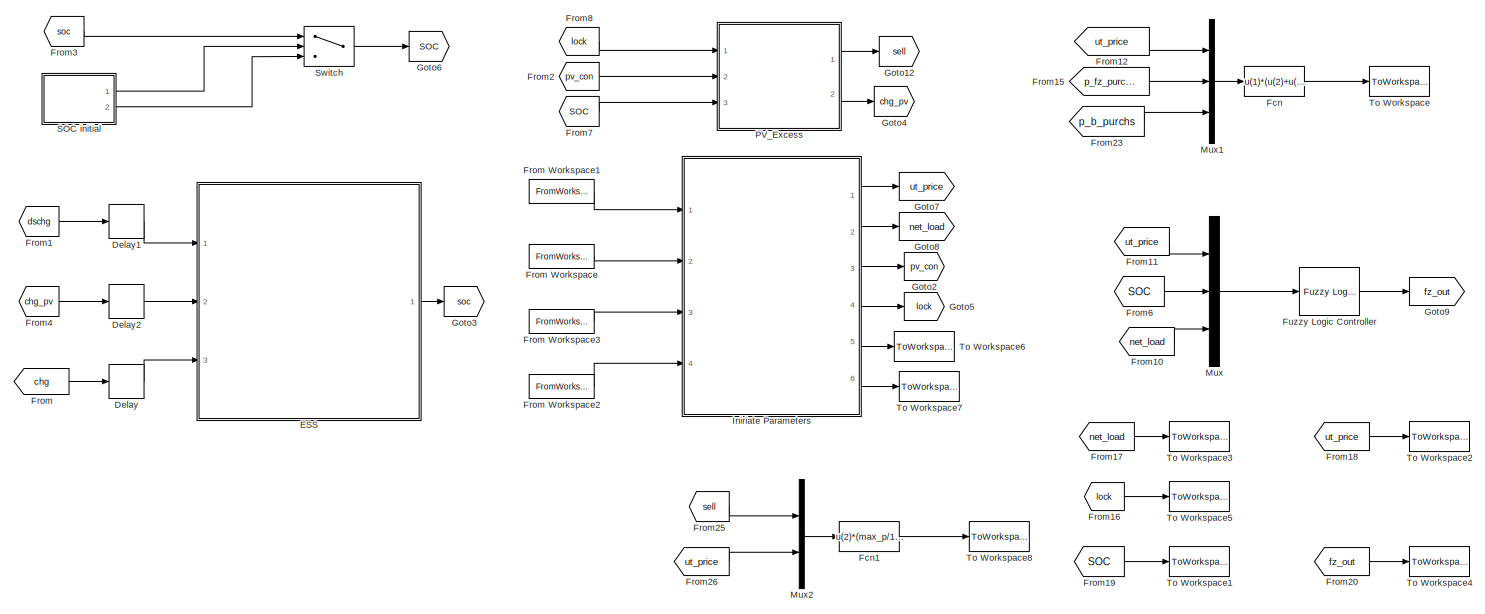
[diagram: root canvas - part 1/2, most of the canvas]
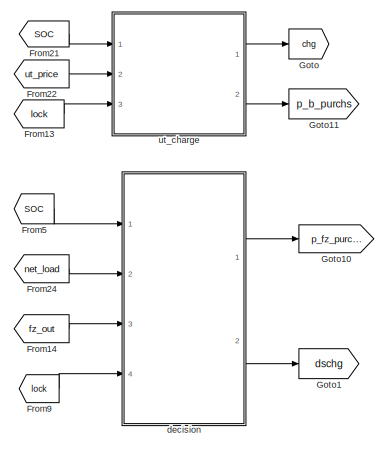
[diagram: root canvas - part 2/2, middle right region]
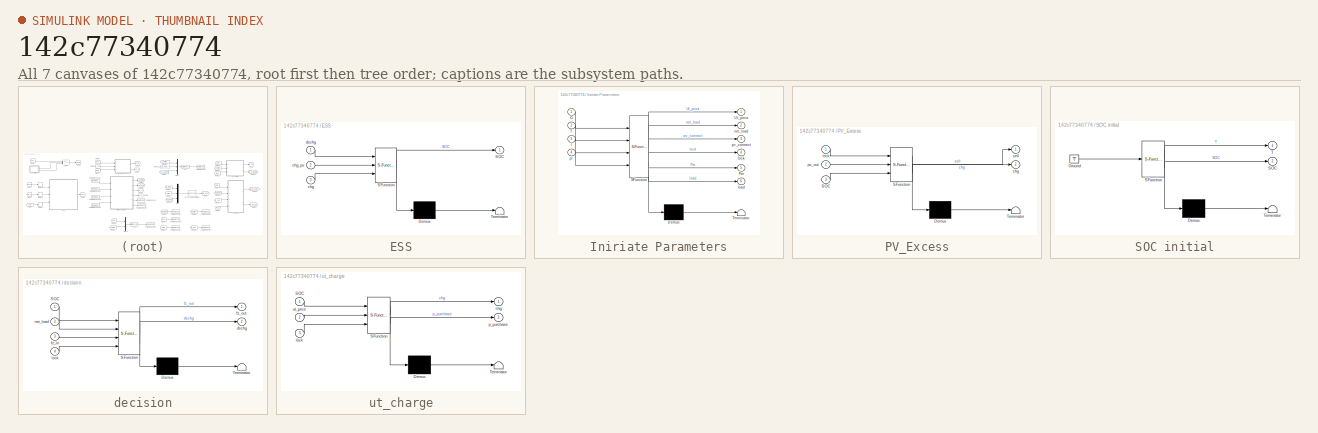
[diagram: thumbnail index - all 7 canvases of the model, root first then tree order]
MODEL slx_142c77340774
KIND model
CONFIG AbsTol = auto
CONFIG EnableMultiTasking = off
CONFIG FixedStep = 0.01
CONFIG InitFcn = myparameterswithpv;
CONFIG MaxStep = auto
CONFIG MinStep = auto
CONFIG PreLoadFcn = myparameterswithpv;
CONFIG RelTol = 1e-3
CONFIG SampleTimeConstraint = Unconstrained
CONFIG Solver = FixedStepAuto
CONFIG SolverName = FixedStepAuto
CONFIG StartTime = 0.0
CONFIG StopFcn = %datawriter;
CONFIG StopTime = 1.66
BLOCK [Delay] Delay
  DelayLength = 1
  InitialCondition = 0
  InputPortMap = u0
  Ports = [1, 1]
BLOCK [Delay] Delay1
  DelayLength = 1
  InitialCondition = 0
  InputPortMap = u0
  Ports = [1, 1]
BLOCK [Delay] Delay2
  DelayLength = 1
  InitialCondition = 0
  InputPortMap = u0
  Ports = [1, 1]
BLOCK [SubSystem] ESS
  ErrorFcn = Stateflow.Translate.translate
  PermitHierarchicalResolution = ExplicitOnly
  Ports = [3, 1]
  RequestExecContextInheritance = off
  SFBlockType = MATLAB Function
  TreatAsAtomicUnit = on
BLOCK [Demux] ESS/ Demux 
  Outputs = 1
  Ports = [1, 1]
BLOCK [S-Function] ESS/ SFunction 
  EnableBusSupport = on
  FunctionName = sf_sfun
  PortCounts = [3 2]
  Ports = [3, 2]
  SFcnIsStateOwnerBlock = off
  SFunctionDeploymentMode = off
  Tag = Stateflow S-Function ModelWithPV 2
BLOCK [Terminator] ESS/ Terminator 
BLOCK [Outport] ESS/SOC
  IconDisplay = Port number
BLOCK [Inport] ESS/chg
  IconDisplay = Port number
  Port = 3
BLOCK [Inport] ESS/chg_pv
  IconDisplay = Port number
  Port = 2
BLOCK [Inport] ESS/dschg
  IconDisplay = Port number
BLOCK [Fcn] Fcn
  Expr = u(1)*(u(2)+u(3))*max_p/1000000
BLOCK [Fcn] Fcn1
  Expr = u(2)*(max_p/1000)*(u(1)/1000)
BLOCK [From] From
  GotoTag = chg
BLOCK [FromWorkspace] From Workspace
  SampleTime = 0
  VariableName = T_data
  ZeroCross = on
BLOCK [FromWorkspace] From Workspace1
  SampleTime = 0
  VariableName = G_data
  ZeroCross = on
BLOCK [FromWorkspace] From Workspace2
  SampleTime = 0
  VariableName = ut_price
  ZeroCross = on
BLOCK [FromWorkspace] From Workspace3
  SampleTime = 0
  VariableName = load_data
  ZeroCross = on
BLOCK [From] From1
  GotoTag = dschg
BLOCK [From] From10
  GotoTag = net_load
BLOCK [From] From11
  GotoTag = ut_price
BLOCK [From] From12
  GotoTag = ut_price
BLOCK [From] From13
  GotoTag = lock
BLOCK [From] From14
  GotoTag = fz_out
BLOCK [From] From15
  GotoTag = p_fz_purchs
BLOCK [From] From16
  GotoTag = lock
BLOCK [From] From17
  GotoTag = net_load
BLOCK [From] From18
  GotoTag = ut_price
BLOCK [From] From19
  GotoTag = SOC
BLOCK [From] From2
  GotoTag = pv_con
BLOCK [From] From20
  GotoTag = fz_out
BLOCK [From] From21
  GotoTag = SOC
BLOCK [From] From22
  GotoTag = ut_price
BLOCK [From] From23
  GotoTag = p_b_purchs
BLOCK [From] From24
  GotoTag = net_load
BLOCK [From] From25
  GotoTag = sell
BLOCK [From] From26
  GotoTag = ut_price
BLOCK [From] From3
  GotoTag = soc
BLOCK [From] From4
  GotoTag = chg_pv
BLOCK [From] From5
  GotoTag = SOC
BLOCK [From] From6
  GotoTag = SOC
BLOCK [From] From7
  GotoTag = SOC
BLOCK [From] From8
  GotoTag = lock
BLOCK [From] From9
  GotoTag = lock
BLOCK [Reference] Fuzzy Logic Controller  REF=fuzblock/Fuzzy Logic   (lib defined in mdl_858b3b3e7478)
Controller
  Ports = [1, 1]
  SourceBlock = fuzblock/Fuzzy Logic \nController
  SourceProductBaseCode = FL
  SourceProductName = Fuzzy Logic Toolbox
  SourceType = Fuzzy Inference System
BLOCK [Goto] Goto
  GotoTag = chg
BLOCK [Goto] Goto1
  GotoTag = dschg
BLOCK [Goto] Goto10
  GotoTag = p_fz_purchs
BLOCK [Goto] Goto11
  GotoTag = p_b_purchs
BLOCK [Goto] Goto12
  GotoTag = sell
BLOCK [Goto] Goto2
  GotoTag = pv_con
BLOCK [Goto] Goto3
  GotoTag = soc
BLOCK [Goto] Goto4
  GotoTag = chg_pv
BLOCK [Goto] Goto5
  GotoTag = lock
BLOCK [Goto] Goto6
  GotoTag = SOC
BLOCK [Goto] Goto7
  GotoTag = ut_price
BLOCK [Goto] Goto8
  GotoTag = net_load
BLOCK [Goto] Goto9
  GotoTag = fz_out
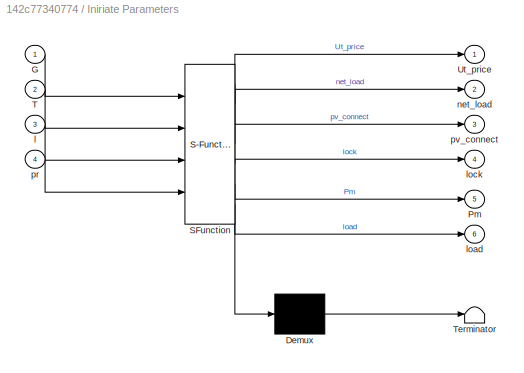
BLOCK [SubSystem] Iniriate Parameters
  ErrorFcn = Stateflow.Translate.translate
  PermitHierarchicalResolution = ExplicitOnly
  Ports = [4, 6]
  RequestExecContextInheritance = off
  SFBlockType = MATLAB Function
  TreatAsAtomicUnit = on
BLOCK [Demux] Iniriate Parameters/ Demux 
  Outputs = 1
  Ports = [1, 1]
BLOCK [S-Function] Iniriate Parameters/ SFunction 
  EnableBusSupport = on
  FunctionName = sf_sfun
  PortCounts = [4 7]
  Ports = [4, 7]
  SFcnIsStateOwnerBlock = off
  SFunctionDeploymentMode = off
  Tag = Stateflow S-Function ModelWithPV 3
BLOCK [Terminator] Iniriate Parameters/ Terminator 
BLOCK [Inport] Iniriate Parameters/G
  IconDisplay = Port number
BLOCK [Outport] Iniriate Parameters/Pm
  IconDisplay = Port number
  Port = 5
BLOCK [Inport] Iniriate Parameters/T
  IconDisplay = Port number
  Port = 2
BLOCK [Outport] Iniriate Parameters/Ut_price
  IconDisplay = Port number
BLOCK [Inport] Iniriate Parameters/l
  IconDisplay = Port number
  Port = 3
BLOCK [Outport] Iniriate Parameters/load
  IconDisplay = Port number
  Port = 6
BLOCK [Outport] Iniriate Parameters/lock
  IconDisplay = Port number
  Port = 4
BLOCK [Outport] Iniriate Parameters/net_load
  IconDisplay = Port number
  Port = 2
BLOCK [Inport] Iniriate Parameters/pr
  IconDisplay = Port number
  Port = 4
BLOCK [Outport] Iniriate Parameters/pv_connect
  IconDisplay = Port number
  Port = 3
BLOCK [Mux] Mux
  DisplayOption = bar
  Inputs = 3
  Ports = [3, 1]
BLOCK [Mux] Mux1
  DisplayOption = bar
  Inputs = 3
  Ports = [3, 1]
BLOCK [Mux] Mux2
  DisplayOption = bar
  Inputs = 2
  Ports = [2, 1]
BLOCK [SubSystem] PV_Excess
  ErrorFcn = Stateflow.Translate.translate
  PermitHierarchicalResolution = ExplicitOnly
  Ports = [3, 2]
  RequestExecContextInheritance = off
  SFBlockType = MATLAB Function
  TreatAsAtomicUnit = on
BLOCK [Demux] PV_Excess/ Demux 
  Outputs = 1
  Ports = [1, 1]
BLOCK [S-Function] PV_Excess/ SFunction 
  EnableBusSupport = on
  FunctionName = sf_sfun
  PortCounts = [3 3]
  Ports = [3, 3]
  SFcnIsStateOwnerBlock = off
  SFunctionDeploymentMode = off
  Tag = Stateflow S-Function ModelWithPV 1
BLOCK [Terminator] PV_Excess/ Terminator 
BLOCK [Inport] PV_Excess/SOC
  IconDisplay = Port number
  Port = 3
BLOCK [Outport] PV_Excess/chg
  IconDisplay = Port number
  Port = 2
BLOCK [Inport] PV_Excess/lock
  IconDisplay = Port number
BLOCK [Inport] PV_Excess/pv_out
  IconDisplay = Port number
  Port = 2
BLOCK [Outport] PV_Excess/sell
  IconDisplay = Port number
BLOCK [SubSystem] SOC initial
  ErrorFcn = Stateflow.Translate.translate
  PermitHierarchicalResolution = ExplicitOnly
  Ports = [0, 2]
  RequestExecContextInheritance = off
  SFBlockType = MATLAB Function
  TreatAsAtomicUnit = on
BLOCK [Demux] SOC initial/ Demux 
  Outputs = 1
  Ports = [1, 1]
BLOCK [Ground] SOC initial/ Ground 
BLOCK [S-Function] SOC initial/ SFunction 
  EnableBusSupport = on
  FunctionName = sf_sfun
  PortCounts = [1 3]
  Ports = [1, 3]
  SFcnIsStateOwnerBlock = off
  SFunctionDeploymentMode = off
  Tag = Stateflow S-Function ModelWithPV 5
BLOCK [Terminator] SOC initial/ Terminator 
BLOCK [Outport] SOC initial/SOC
  IconDisplay = Port number
  Port = 2
BLOCK [Outport] SOC initial/T
  IconDisplay = Port number
BLOCK [Switch] Switch
  Criteria = u2 > Threshold
  InputSameDT = off
  SaturateOnIntegerOverflow = off
  Threshold = 1
BLOCK [ToWorkspace] To Workspace
  FixptAsFi = on
  MaxDataPoints = inf
  Ports = [1]
  SampleTime = -1
  Save2DSignal = 3-D array (concatenate along third dimension)
  SaveFormat = Timeseries
  VariableName = bill
BLOCK [ToWorkspace] To Workspace1
  FixptAsFi = on
  MaxDataPoints = inf
  Ports = [1]
  SampleTime = -1
  Save2DSignal = 3-D array (concatenate along third dimension)
  SaveFormat = Timeseries
  VariableName = soc
BLOCK [ToWorkspace] To Workspace2
  FixptAsFi = on
  MaxDataPoints = inf
  Ports = [1]
  SampleTime = -1
  Save2DSignal = 3-D array (concatenate along third dimension)
  SaveFormat = Timeseries
  VariableName = price_out
BLOCK [ToWorkspace] To Workspace3
  FixptAsFi = on
  MaxDataPoints = inf
  Ports = [1]
  SampleTime = -1
  Save2DSignal = 3-D array (concatenate along third dimension)
  SaveFormat = Timeseries
  VariableName = net_load_out
BLOCK [ToWorkspace] To Workspace4
  FixptAsFi = on
  MaxDataPoints = inf
  Ports = [1]
  SampleTime = -1
  Save2DSignal = 3-D array (concatenate along third dimension)
  SaveFormat = Timeseries
  VariableName = fz_out
BLOCK [ToWorkspace] To Workspace5
  FixptAsFi = on
  MaxDataPoints = inf
  Ports = [1]
  SampleTime = -1
  Save2DSignal = 3-D array (concatenate along third dimension)
  SaveFormat = Timeseries
  VariableName = Lock
BLOCK [ToWorkspace] To Workspace6
  FixptAsFi = on
  MaxDataPoints = inf
  Ports = [1]
  SampleTime = -1
  Save2DSignal = 3-D array (concatenate along third dimension)
  SaveFormat = Timeseries
  VariableName = pv_power
BLOCK [ToWorkspace] To Workspace7
  FixptAsFi = on
  MaxDataPoints = inf
  Ports = [1]
  SampleTime = -1
  Save2DSignal = 3-D array (concatenate along third dimension)
  SaveFormat = Timeseries
  VariableName = load
BLOCK [ToWorkspace] To Workspace8
  FixptAsFi = on
  MaxDataPoints = inf
  Ports = [1]
  SampleTime = -1
  Save2DSignal = 3-D array (concatenate along third dimension)
  SaveFormat = Timeseries
  VariableName = gains
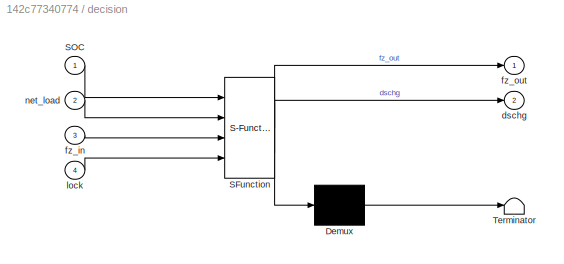
BLOCK [SubSystem] decision
  ErrorFcn = Stateflow.Translate.translate
  PermitHierarchicalResolution = ExplicitOnly
  Ports = [4, 2]
  RequestExecContextInheritance = off
  SFBlockType = MATLAB Function
  TreatAsAtomicUnit = on
BLOCK [Demux] decision/ Demux 
  Outputs = 1
  Ports = [1, 1]
BLOCK [S-Function] decision/ SFunction 
  EnableBusSupport = on
  FunctionName = sf_sfun
  PortCounts = [4 3]
  Ports = [4, 3]
  SFcnIsStateOwnerBlock = off
  SFunctionDeploymentMode = off
  Tag = Stateflow S-Function ModelWithPV 6
BLOCK [Terminator] decision/ Terminator 
BLOCK [Inport] decision/SOC
  IconDisplay = Port number
BLOCK [Outport] decision/dschg
  IconDisplay = Port number
  Port = 2
BLOCK [Inport] decision/fz_in
  IconDisplay = Port number
  Port = 3
BLOCK [Outport] decision/fz_out
  IconDisplay = Port number
BLOCK [Inport] decision/lock
  IconDisplay = Port number
  Port = 4
BLOCK [Inport] decision/net_load
  IconDisplay = Port number
  Port = 2
BLOCK [SubSystem] ut_charge
  ErrorFcn = Stateflow.Translate.translate
  PermitHierarchicalResolution = ExplicitOnly
  Ports = [3, 2]
  RequestExecContextInheritance = off
  SFBlockType = MATLAB Function
  TreatAsAtomicUnit = on
BLOCK [Demux] ut_charge/ Demux 
  Outputs = 1
  Ports = [1, 1]
BLOCK [S-Function] ut_charge/ SFunction 
  EnableBusSupport = on
  FunctionName = sf_sfun
  PortCounts = [3 3]
  Ports = [3, 3]
  SFcnIsStateOwnerBlock = off
  SFunctionDeploymentMode = off
  Tag = Stateflow S-Function ModelWithPV 4
BLOCK [Terminator] ut_charge/ Terminator 
BLOCK [Inport] ut_charge/SOC
  IconDisplay = Port number
BLOCK [Outport] ut_charge/chg
  IconDisplay = Port number
BLOCK [Inport] ut_charge/lock
  IconDisplay = Port number
  Port = 3
BLOCK [Outport] ut_charge/p_purchase
  IconDisplay = Port number
  Port = 2
BLOCK [Inport] ut_charge/ut_price
  IconDisplay = Port number
  Port = 2
LINE Delay1:1 -> ESS:1
LINE Delay2:1 -> ESS:2
LINE Delay:1 -> ESS:3
LINE ESS:1 -> Goto3:1
LINE Fcn1:1 -> To Workspace8:1
LINE Fcn:1 -> To Workspace:1
LINE From Workspace1:1 -> Iniriate Parameters:1
LINE From Workspace2:1 -> Iniriate Parameters:4
LINE From Workspace3:1 -> Iniriate Parameters:3
LINE From Workspace:1 -> Iniriate Parameters:2
LINE From10:1 -> Mux:3
LINE From11:1 -> Mux:1
LINE From12:1 -> Mux1:1
LINE From13:1 -> ut_charge:3
LINE From14:1 -> decision:3
LINE From15:1 -> Mux1:2
LINE From16:1 -> To Workspace5:1
LINE From17:1 -> To Workspace3:1
LINE From18:1 -> To Workspace2:1
LINE From19:1 -> To Workspace1:1
LINE From1:1 -> Delay1:1
LINE From20:1 -> To Workspace4:1
LINE From21:1 -> ut_charge:1
LINE From22:1 -> ut_charge:2
LINE From23:1 -> Mux1:3
LINE From24:1 -> decision:2
LINE From25:1 -> Mux2:1
LINE From26:1 -> Mux2:2
LINE From2:1 -> PV_Excess:2
LINE From3:1 -> Switch:1
LINE From4:1 -> Delay2:1
LINE From5:1 -> decision:1
LINE From6:1 -> Mux:2
LINE From7:1 -> PV_Excess:3
LINE From8:1 -> PV_Excess:1
LINE From9:1 -> decision:4
LINE From:1 -> Delay:1
LINE Fuzzy Logic Controller:1 -> Goto9:1
LINE Iniriate Parameters:1 -> Goto7:1
LINE Iniriate Parameters:2 -> Goto8:1
LINE Iniriate Parameters:3 -> Goto2:1
LINE Iniriate Parameters:4 -> Goto5:1
LINE Iniriate Parameters:5 -> To Workspace6:1
LINE Iniriate Parameters:6 -> To Workspace7:1
LINE Mux1:1 -> Fcn:1
LINE Mux2:1 -> Fcn1:1
LINE Mux:1 -> Fuzzy Logic Controller:1
LINE PV_Excess:1 -> Goto12:1
LINE PV_Excess:2 -> Goto4:1
LINE SOC initial:1 -> Switch:2
LINE SOC initial:2 -> Switch:3
LINE Switch:1 -> Goto6:1
LINE decision:1 -> Goto10:1
LINE decision:2 -> Goto1:1
LINE ut_charge:1 -> Goto:1
LINE ut_charge:2 -> Goto11:1
CHART PV_Excess states=1 transitions=1
  STATE_LABEL 'eML_blk_kernel()'
  STATE_LABEL "SCRIPT:\nfunction [sell, chg]  = sell_or_charge(lock, pv_out, SOC)\n%f = 'on';\n% Decides on whether to charge the battery or sell power\n% to the utility\n% persistent t;\n\n% if isempty(t) || t == 24\n%     t = 1;\n% end\n% \n% if pv_out(1) > 0 && soc == 100\n%     %Sell to the utility\n%     chg = 0;\n%     sell = 0; % To be determined later\n% elseif pv_out(1) > 0 && soc < 100\n%     % Charge the battery\n%   ...<+736ch>"
CHART ESS states=1 transitions=1
  STATE_LABEL 'eML_blk_kernel()'
  STATE_LABEL 'SCRIPT:\nfunction SOC = battery(dschg, chg_pv, chg)\n% Battery State of charge \npersistent SOC_initial;\n\n%Battery specifications\nQ = 1212; % Battery capacity in Ah\n\n\nif isempty(SOC_initial)\n    %Initialize the state of charge to 100%\n    SOC_initial = 70;\nend\n\n\n% if chg > 0 && chg_pv == 0\n%     % Charge the battery\n%     SOC = SOC_initial + (100/Q)*chg; %chg is the charging current\n% elseif chg == 0...<+641ch>'
CHART Iniriate Parameters states=1 transitions=1
  STATE_LABEL 'eML_blk_kernel()'
  STATE_LABEL "SCRIPT:\nfunction [Ut_price, net_load, pv_connect, lock, Pm, load] = eval_param(G, T, l, pr)\n\n% Manufacturers data sheet data Solar panel\nPstc = 120;  %Max. power at STC\nCp = 0.45;   %module power temp. coefficient\nTr = 25;     %module reference temp. at STC   \nGstc = 1000; %irradiance at STC\nIstc = 6.6;  %current at STC\nVstc = 18.1; %voltage at STC\n\npersistent t;\n%dataType = 'double';\n\nif isempty(...<+490ch>"
CHART ut_charge states=1 transitions=1
  STATE_LABEL 'eML_blk_kernel()'
  STATE_LABEL 'SCRIPT:\nfunction [chg, p_purchase] = ut_charge(SOC, ut_price, lock)\n% Charges the battery when the Utility prices are low\nQ = 1212; %Battery capacity\nif lock == 1\n    %PV power output is enough\n    chg = 0;\n    p_purchase = 0;\nelse\n    %PV out is less\n    %Check the state of charge of the battery\n    if SOC >=80\n        % No need to charge\n        chg = 0;\n        p_purchase = 0;\n    else\n        ...<+329ch>'
CHART SOC initial states=1 transitions=1
  STATE_LABEL 'eML_blk_kernel()'
  STATE_LABEL 'SCRIPT:\nfunction [T, SOC] = soc_i()\n\npersistent t;\nif isempty(t)\n    t = 1;\nend\n\nif t == 1\n    SOC = 100;\nelse\n    SOC = 0;\nend\nT = t;\nt = t+1;\n'
CHART decision states=1 transitions=1
  STATE_LABEL 'eML_blk_kernel()'
  STATE_LABEL 'SCRIPT:\nfunction [fz_out, dschg]= decision_intp(SOC, net_load, fz_in, lock)\n%Q = 340; % Ah\ny = net_load - fz_in;\nif lock == 1\n    % The output of the pv is in excess and there is no need to run the\n    % fuzzy logic controller\n    dschg = 0;\n    fz_out = 0;\nelse\n    if SOC > 30\n       dschg = net_load/240;\n       fz_out = 0;\n    else\n       dschg = 0;\n       fz_out = fz_in;\n    end\n\n%     if y > 0...<+404ch>'
